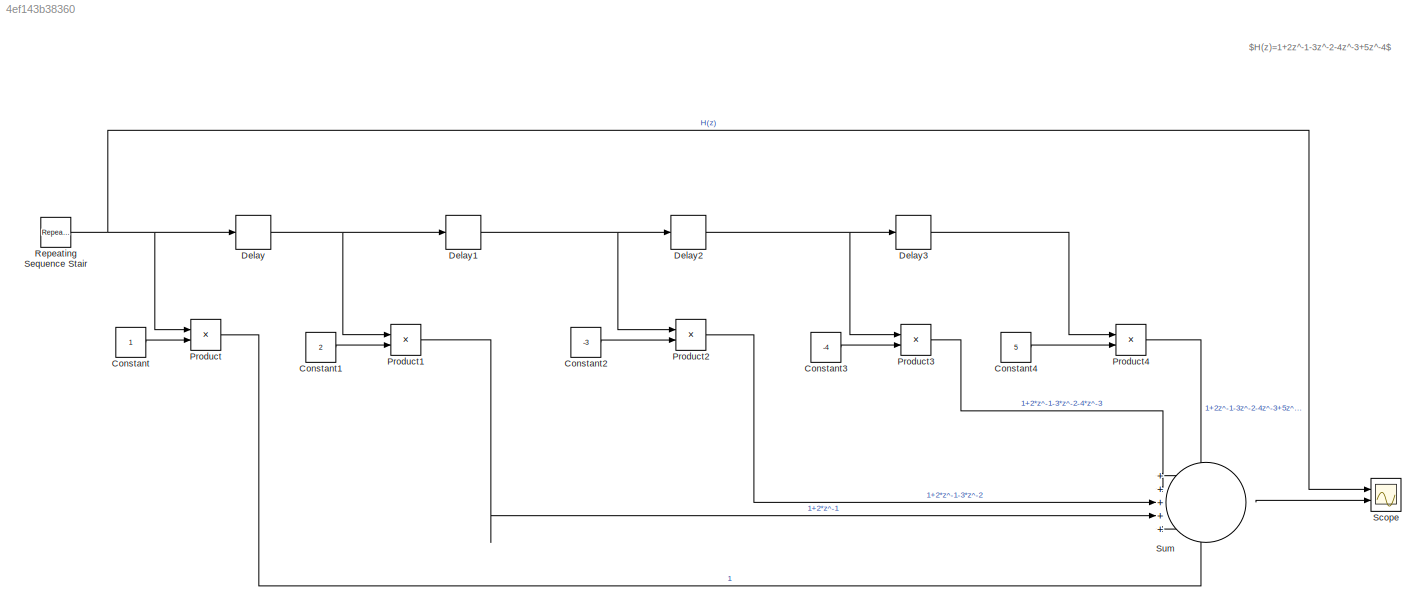
MODEL slx_4ef143b38360
KIND model
CONFIG AbsTol = auto
CONFIG EnableMultiTasking = off
CONFIG FixedStep = auto
CONFIG MaxStep = auto
CONFIG MinStep = auto
CONFIG RelTol = 1e-3
CONFIG SampleTimeConstraint = Unconstrained
CONFIG Solver = VariableStepAuto
CONFIG SolverName = VariableStepAuto
CONFIG StartTime = 0.0
CONFIG StopTime = 10.0
BLOCK [Constant] Constant
BLOCK [Constant] Constant1
  Value = 2
BLOCK [Constant] Constant2
  Value = -3
BLOCK [Constant] Constant3
  Value = -4
BLOCK [Constant] Constant4
  Value = 5
BLOCK [Delay] Delay
  DelayLength = 1
  InputPortMap = u0
  Ports = [1, 1]
BLOCK [Delay] Delay1
  DelayLength = 1
  InputPortMap = u0
  Ports = [1, 1]
BLOCK [Delay] Delay2
  DelayLength = 1
  InputPortMap = u0
  Ports = [1, 1]
BLOCK [Delay] Delay3
  DelayLength = 1
  InputPortMap = u0
  Ports = [1, 1]
BLOCK [Product] Product
  Ports = [2, 1]
BLOCK [Product] Product1
  Ports = [2, 1]
BLOCK [Product] Product2
  Ports = [2, 1]
BLOCK [Product] Product3
  Ports = [2, 1]
BLOCK [Product] Product4
  Ports = [2, 1]
BLOCK [Reference] Repeating Sequence Stair  REF=simulink/Sources/Repeating
Sequence
Stair
  Ports = [0, 1]
  SourceBlock = simulink/Sources/Repeating\nSequence\nStair
  SourceProductBaseCode = SL
  SourceType = Repeating Sequence Stair
BLOCK [Scope] Scope
  Floating = off
  NumInputPorts = 2
  Ports = [2]
  ScopeSpecificationString = Simulink.scopes.TimeScopeBlockCfg('CurrentConfiguration', extmgr.ConfigurationSet(extmgr.Configuration('Core','General UI',true),extmgr.Configuration('Core','Source UI',true),extmgr.Configuration('Sources','WiredSimulink',true),extmgr.Configuration('Visuals','Time Domain',true,'SerializedDisplays',{struct('MinYLimReal','0.625','MaxYLimReal','4.375','YLabelReal','','MinYLimMag','0.625','MaxYLimMag'...<+1936ch>
BLOCK [Sum] Sum
  Inputs = +++++
  Ports = [5, 1]
ANNOTATION (root): $H(z)=1+2z^-1-3z^-2-4z^-3+5z^-4$
LINE Constant1:1 -> Product1:2
LINE Constant2:1 -> Product2:2
LINE Constant3:1 -> Product3:2
LINE Constant4:1 -> Product4:2
LINE Constant:1 -> Product:2
NET Delay1:1 -> Delay2:1, Product2:1
NET Delay2:1 -> Delay3:1, Product3:1
LINE Delay3:1 -> Product4:1
NET Delay:1 -> Delay1:1, Product1:1
LINE Product1:1 -> Sum:4
LINE Product2:1 -> Sum:3
LINE Product3:1 -> Sum:2
LINE Product4:1 -> Sum:1
LINE Product:1 -> Sum:5
NET Repeating Sequence Stair:1 -> Delay:1, Product:1, Scope:1
LINE Sum:1 -> Scope:2
note: NET lines group one-source signal fan-out (src -> all destinations, sorted); 1:1 wires keep LINE
